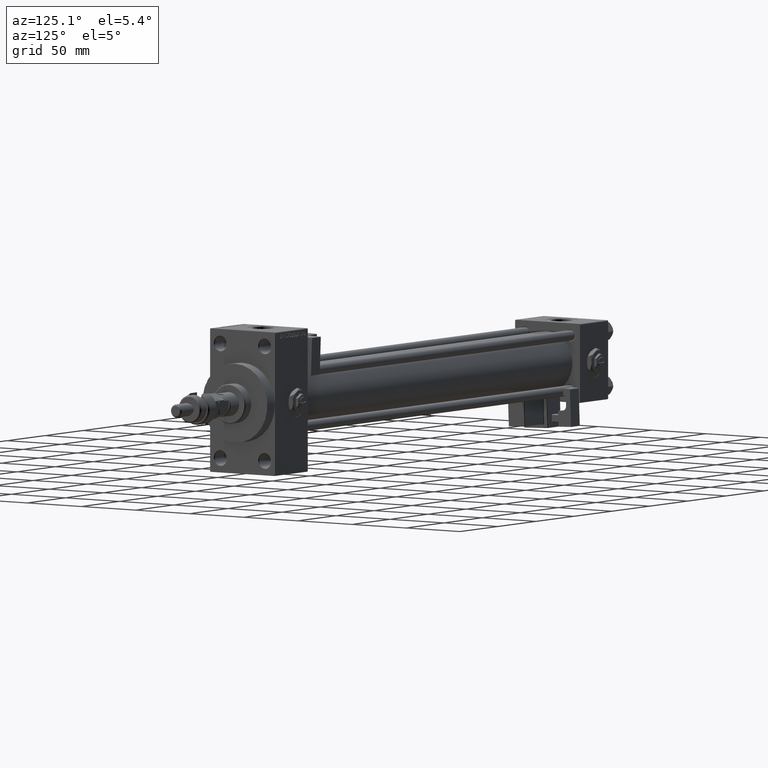
[diagram: clean part render]
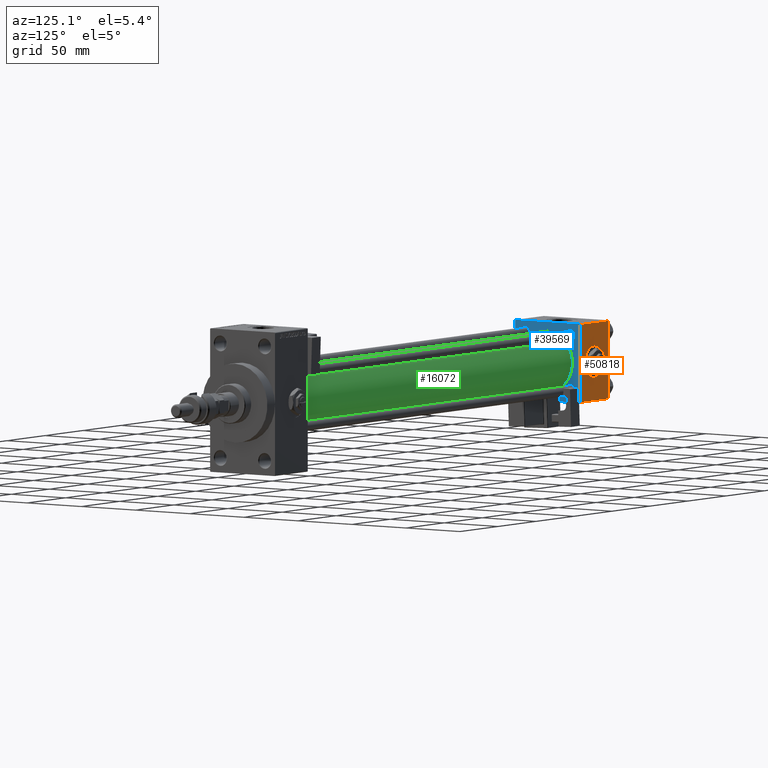
[diagram: same view with three faces highlighted in distinct colors, each labeled with its STEP entity id]
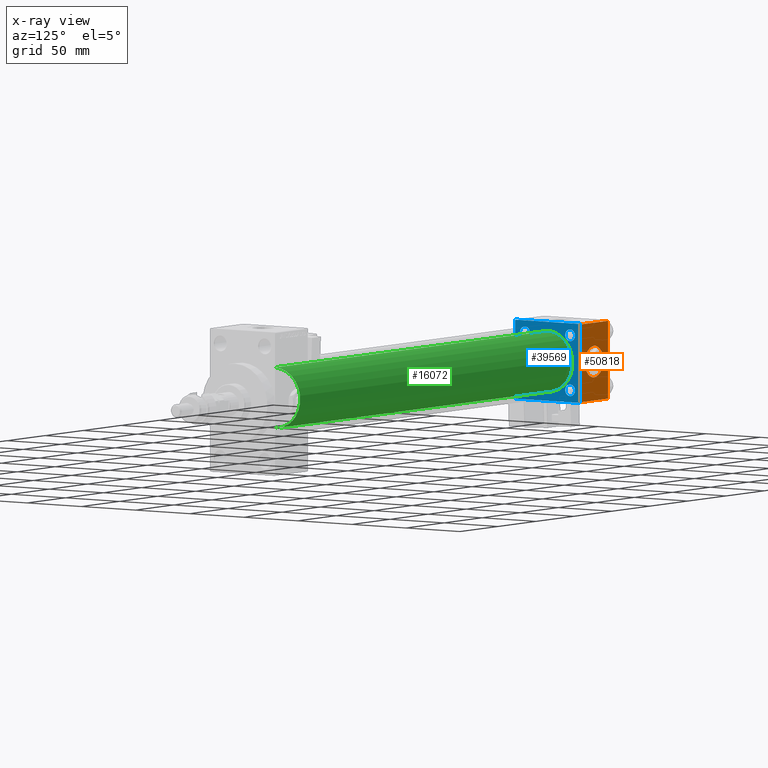
[diagram: x-ray of the same camera — body ghosted, the three highlighted faces saturated]
A machine part, auxiliary view with three faces highlighted in distinct colors.
The next image is the same camera in x-ray (body ghosted, the three faces saturated) — at least one of them is partly hidden behind the body in this view.
Their STEP definitions:

[orange] entity #50818 — the highlighted planar face has unit normal (0, 1, 0).
#104 = ORIENTED_EDGE ( 'NONE', *, *, #51241, .T. ) ;
#1538 = CARTESIAN_POINT ( 'NONE',  ( 18.50000000000000000, 29.99999999999999289, 0.000000000000000000 ) ) ;
#3291 = CARTESIAN_POINT ( 'NONE',  ( 0.000000000000000000, 29.99999999999999289, 29.50000000000000000 ) ) ;
#3626 = CARTESIAN_POINT ( 'NONE',  ( 37.00000000000000000, 29.99999999999999289, -29.50000000000000000 ) ) ;
#5875 = ORIENTED_EDGE ( 'NONE', *, *, #31510, .F. ) ;
#6135 = FACE_OUTER_BOUND ( 'NONE', #10304, .T. ) ;
#6516 = VERTEX_POINT ( 'NONE', #27968 ) ;
#6870 = VECTOR ( 'NONE', #34539, 1000.000000000000000 ) ;
#7193 = ORIENTED_EDGE ( 'NONE', *, *, #35516, .F. ) ;
#9109 = CARTESIAN_POINT ( 'NONE',  ( 37.00000000000000000, 29.99999999999999289, 29.50000000000000000 ) ) ;
#9178 = VERTEX_POINT ( 'NONE', #3626 ) ;
#9516 = DIRECTION ( 'NONE',  ( 0.000000000000000000, 0.000000000000000000, 1.000000000000000000 ) ) ;
#9603 = DIRECTION ( 'NONE',  ( 0.000000000000000000, 0.000000000000000000, 1.000000000000000000 ) ) ;
#9841 = LINE ( 'NONE', #17783, #6870 ) ;
#10055 = VECTOR ( 'NONE', #21676, 1000.000000000000000 ) ;
#10276 = CARTESIAN_POINT ( 'NONE',  ( 37.00000000000000000, 29.99999999999999289, 30.00000000000000000 ) ) ;
#10304 = EDGE_LOOP ( 'NONE', ( #43933, #104, #5875, #35887 ) ) ;
#10451 = EDGE_CURVE ( 'NONE', #22268, #6516, #25841, .T. ) ;
#11992 = EDGE_LOOP ( 'NONE', ( #18569, #7193 ) ) ;
#12207 = LINE ( 'NONE', #14763, #30319 ) ;
#12694 = AXIS2_PLACEMENT_3D ( 'NONE', #10276, #22879, #39385 ) ;
#14283 = CARTESIAN_POINT ( 'NONE',  ( 18.50000000000000000, 29.99999999999999289, -12.00000000000000178 ) ) ;
#14514 = DIRECTION ( 'NONE',  ( 1.000000000000000000, 0.000000000000000000, 0.000000000000000000 ) ) ;
#14763 = CARTESIAN_POINT ( 'NONE',  ( 37.00000000000000000, 29.99999999999999289, 30.00000000000000000 ) ) ;
#14900 = AXIS2_PLACEMENT_3D ( 'NONE', #1538, #51269, #9516 ) ;
#16297 = CARTESIAN_POINT ( 'NONE',  ( 18.50000000000000000, 29.99999999999999289, 12.00000000000000178 ) ) ;
#17783 = CARTESIAN_POINT ( 'NONE',  ( 0.000000000000000000, 29.99999999999999289, 30.00000000000000000 ) ) ;
#18569 = ORIENTED_EDGE ( 'NONE', *, *, #38070, .F. ) ;
#20396 = CARTESIAN_POINT ( 'NONE',  ( 0.000000000000000000, 29.99999999999999289, -29.50000000000000000 ) ) ;
#21039 = CIRCLE ( 'NONE', #14900, 12.00000000000000178 ) ;
#21232 = VERTEX_POINT ( 'NONE', #14283 ) ;
#21676 = DIRECTION ( 'NONE',  ( -1.000000000000000000, 0.000000000000000000, 0.000000000000000000 ) ) ;
#21701 = EDGE_CURVE ( 'NONE', #6516, #9178, #12207, .T. ) ;
#22268 = VERTEX_POINT ( 'NONE', #3291 ) ;
#22879 = DIRECTION ( 'NONE',  ( -0.000000000000000000, 1.000000000000000000, 0.000000000000000000 ) ) ;
#25841 = LINE ( 'NONE', #9109, #44063 ) ;
#26596 = CARTESIAN_POINT ( 'NONE',  ( 37.00000000000000000, 29.99999999999999289, -29.50000000000000000 ) ) ;
#27968 = CARTESIAN_POINT ( 'NONE',  ( 37.00000000000000000, 29.99999999999999289, 29.50000000000000000 ) ) ;
#28940 = DIRECTION ( 'NONE',  ( 0.000000000000000000, 0.000000000000000000, -1.000000000000000000 ) ) ;
#30319 = VECTOR ( 'NONE', #28940, 1000.000000000000000 ) ;
#30571 = PLANE ( 'NONE',  #12694 ) ;
#31510 = EDGE_CURVE ( 'NONE', #22268, #50860, #9841, .T. ) ;
#34539 = DIRECTION ( 'NONE',  ( 0.000000000000000000, 0.000000000000000000, -1.000000000000000000 ) ) ;
#34572 = LINE ( 'NONE', #26596, #10055 ) ;
#35516 = EDGE_CURVE ( 'NONE', #21232, #46643, #52618, .T. ) ;
#35887 = ORIENTED_EDGE ( 'NONE', *, *, #10451, .T. ) ;
#38070 = EDGE_CURVE ( 'NONE', #46643, #21232, #21039, .T. ) ;
#39385 = DIRECTION ( 'NONE',  ( 0.000000000000000000, -0.000000000000000000, 1.000000000000000000 ) ) ;
#39823 = DIRECTION ( 'NONE',  ( 0.000000000000000000, 1.000000000000000000, 0.000000000000000000 ) ) ;
#42863 = CARTESIAN_POINT ( 'NONE',  ( 18.50000000000000000, 29.99999999999999289, 0.000000000000000000 ) ) ;
#43933 = ORIENTED_EDGE ( 'NONE', *, *, #21701, .T. ) ;
#44063 = VECTOR ( 'NONE', #14514, 1000.000000000000000 ) ;
#46643 = VERTEX_POINT ( 'NONE', #16297 ) ;
#49136 = AXIS2_PLACEMENT_3D ( 'NONE', #42863, #39823, #9603 ) ;
#50818 = ADVANCED_FACE ( 'NONE', ( #51738, #6135 ), #30571, .T. ) ;
#50860 = VERTEX_POINT ( 'NONE', #20396 ) ;
#51241 = EDGE_CURVE ( 'NONE', #9178, #50860, #34572, .T. ) ;
#51269 = DIRECTION ( 'NONE',  ( 0.000000000000000000, 1.000000000000000000, 0.000000000000000000 ) ) ;
#51738 = FACE_BOUND ( 'NONE', #11992, .T. ) ;
#52618 = CIRCLE ( 'NONE', #49136, 12.00000000000000178 ) ;

[blue] entity #39569 — the highlighted planar face has unit normal (-1, 0, 0).
#359 = EDGE_LOOP ( 'NONE', ( #43557, #28115 ) ) ;
#583 = CIRCLE ( 'NONE', #46210, 4.500000000000003553 ) ;
#760 = CARTESIAN_POINT ( 'NONE',  ( 36.99999999999997868, -2.602085213965210642E-15, 23.00000000000000000 ) ) ;
#785 = VERTEX_POINT ( 'NONE', #45329 ) ;
#1476 = CARTESIAN_POINT ( 'NONE',  ( 37.00000000000000000, 20.84999999999999787, -20.85000000000000142 ) ) ;
#1687 = FACE_BOUND ( 'NONE', #13300, .T. ) ;
#1828 = CARTESIAN_POINT ( 'NONE',  ( 37.00000000000000000, 20.84999999999999787, 20.85000000000000142 ) ) ;
#1868 = AXIS2_PLACEMENT_3D ( 'NONE', #17130, #33338, #42163 ) ;
#1968 = DIRECTION ( 'NONE',  ( -0.000000000000000000, 0.000000000000000000, 1.000000000000000000 ) ) ;
#3209 = ORIENTED_EDGE ( 'NONE', *, *, #50707, .T. ) ;
#3626 = CARTESIAN_POINT ( 'NONE',  ( 37.00000000000000000, 29.99999999999999289, -29.50000000000000000 ) ) ;
#3679 = CARTESIAN_POINT ( 'NONE',  ( 36.99999999999997868, -2.602085213965210642E-15, 0.000000000000000000 ) ) ;
#4195 = VERTEX_POINT ( 'NONE', #760 ) ;
#4519 = CARTESIAN_POINT ( 'NONE',  ( 37.00000000000000000, 29.49999999999999289, 30.00000000000000000 ) ) ;
#4729 = LINE ( 'NONE', #29997, #20088 ) ;
#4992 = VERTEX_POINT ( 'NONE', #36251 ) ;
#5046 = DIRECTION ( 'NONE',  ( 0.000000000000000000, -0.7071067811865474617, 0.7071067811865474617 ) ) ;
#5158 = EDGE_LOOP ( 'NONE', ( #42391, #13792 ) ) ;
#5332 = ORIENTED_EDGE ( 'NONE', *, *, #28975, .T. ) ;
#5422 = ORIENTED_EDGE ( 'NONE', *, *, #17268, .T. ) ;
#5485 = VERTEX_POINT ( 'NONE', #6170 ) ;
#6043 = CIRCLE ( 'NONE', #20053, 23.00000000000000000 ) ;
#6170 = CARTESIAN_POINT ( 'NONE',  ( 37.00000000000000000, -20.84999999999999076, -25.35000000000000853 ) ) ;
#6510 = CARTESIAN_POINT ( 'NONE',  ( 37.00000000000000000, 20.84999999999999787, 25.35000000000000497 ) ) ;
#6516 = VERTEX_POINT ( 'NONE', #27968 ) ;
#7122 = DIRECTION ( 'NONE',  ( 0.000000000000000000, -1.000000000000000000, -1.156482317317871725E-16 ) ) ;
#7126 = VERTEX_POINT ( 'NONE', #35402 ) ;
#7792 = CIRCLE ( 'NONE', #21796, 23.00000000000000000 ) ;
#7813 = DIRECTION ( 'NONE',  ( -1.000000000000000000, 0.000000000000000000, -0.000000000000000000 ) ) ;
#8081 = DIRECTION ( 'NONE',  ( 1.000000000000000000, -0.000000000000000000, 0.000000000000000000 ) ) ;
#8410 = CARTESIAN_POINT ( 'NONE',  ( 37.00000000000000000, 29.49999999999999289, 30.00000000000000000 ) ) ;
#8701 = AXIS2_PLACEMENT_3D ( 'NONE', #46298, #20186, #41090 ) ;
#8922 = LINE ( 'NONE', #4519, #19657 ) ;
#9136 = ORIENTED_EDGE ( 'NONE', *, *, #29415, .T. ) ;
#9178 = VERTEX_POINT ( 'NONE', #3626 ) ;
#9654 = DIRECTION ( 'NONE',  ( 0.000000000000000000, 0.000000000000000000, 1.000000000000000000 ) ) ;
#9944 = DIRECTION ( 'NONE',  ( -1.000000000000000000, 0.000000000000000000, -0.000000000000000000 ) ) ;
#10212 = FACE_BOUND ( 'NONE', #27094, .T. ) ;
#11044 = FACE_BOUND ( 'NONE', #24663, .T. ) ;
#12207 = LINE ( 'NONE', #14763, #30319 ) ;
#13300 = EDGE_LOOP ( 'NONE', ( #52255, #35938 ) ) ;
#13490 = VECTOR ( 'NONE', #7122, 1000.000000000000000 ) ;
#13783 = DIRECTION ( 'NONE',  ( 0.000000000000000000, -1.000000000000000000, -1.156482317317871725E-16 ) ) ;
#13792 = ORIENTED_EDGE ( 'NONE', *, *, #44155, .T. ) ;
#13814 = LINE ( 'NONE', #38539, #32876 ) ;
#13843 = DIRECTION ( 'NONE',  ( 0.000000000000000000, 0.000000000000000000, 1.000000000000000000 ) ) ;
#14034 = EDGE_CURVE ( 'NONE', #29607, #16495, #27985, .T. ) ;
#14145 = CARTESIAN_POINT ( 'NONE',  ( 37.00000000000000000, -20.84999999999999076, -20.85000000000000497 ) ) ;
#14574 = CARTESIAN_POINT ( 'NONE',  ( 37.00000000000000000, 20.84999999999999787, -16.34999999999999787 ) ) ;
#14625 = VERTEX_POINT ( 'NONE', #21720 ) ;
#14633 = EDGE_CURVE ( 'NONE', #51501, #51700, #31861, .T. ) ;
#14676 = CARTESIAN_POINT ( 'NONE',  ( 37.00000000000000000, -29.50000000000000000, -30.00000000000000711 ) ) ;
#14763 = CARTESIAN_POINT ( 'NONE',  ( 37.00000000000000000, 29.99999999999999289, 30.00000000000000000 ) ) ;
#15644 = DIRECTION ( 'NONE',  ( -1.000000000000000000, 0.000000000000000000, -0.000000000000000000 ) ) ;
#15684 = VERTEX_POINT ( 'NONE', #20323 ) ;
#16495 = VERTEX_POINT ( 'NONE', #14676 ) ;
#16902 = CARTESIAN_POINT ( 'NONE',  ( 37.00000000000000000, -30.00000000000000000, 29.49999999999999289 ) ) ;
#17130 = CARTESIAN_POINT ( 'NONE',  ( 37.00000000000000000, 20.84999999999999787, -20.85000000000000142 ) ) ;
#17268 = EDGE_CURVE ( 'NONE', #51700, #7126, #13814, .T. ) ;
#17740 = EDGE_CURVE ( 'NONE', #14625, #36706, #18001, .T. ) ;
#18001 = CIRCLE ( 'NONE', #24139, 4.500000000000003553 ) ;
#19213 = CARTESIAN_POINT ( 'NONE',  ( 37.00000000000000000, 29.49999999999997868, -30.00000000000000000 ) ) ;
#19625 = DIRECTION ( 'NONE',  ( 0.000000000000000000, 0.000000000000000000, 1.000000000000000000 ) ) ;
#19657 = VECTOR ( 'NONE', #5046, 1000.000000000000114 ) ;
#20053 = AXIS2_PLACEMENT_3D ( 'NONE', #3679, #8081, #53939 ) ;
#20088 = VECTOR ( 'NONE', #13783, 1000.000000000000000 ) ;
#20186 = DIRECTION ( 'NONE',  ( -1.000000000000000000, 0.000000000000000000, -0.000000000000000000 ) ) ;
#20292 = VERTEX_POINT ( 'NONE', #8410 ) ;
#20323 = CARTESIAN_POINT ( 'NONE',  ( 36.99999999999997868, 2.146024240737012665E-16, -23.00000000000000000 ) ) ;
#20545 = DIRECTION ( 'NONE',  ( 0.000000000000000000, 0.000000000000000000, 1.000000000000000000 ) ) ;
#21701 = EDGE_CURVE ( 'NONE', #6516, #9178, #12207, .T. ) ;
#21720 = CARTESIAN_POINT ( 'NONE',  ( 37.00000000000000000, 20.84999999999999787, 16.34999999999999787 ) ) ;
#21796 = AXIS2_PLACEMENT_3D ( 'NONE', #21991, #30505, #9654 ) ;
#21991 = CARTESIAN_POINT ( 'NONE',  ( 36.99999999999997868, -2.602085213965210642E-15, 0.000000000000000000 ) ) ;
#23649 = CARTESIAN_POINT ( 'NONE',  ( 37.00000000000000000, 0.000000000000000000, 0.000000000000000000 ) ) ;
#24139 = AXIS2_PLACEMENT_3D ( 'NONE', #54085, #15644, #53287 ) ;
#24663 = EDGE_LOOP ( 'NONE', ( #9136, #30214 ) ) ;
#24929 = VECTOR ( 'NONE', #48366, 1000.000000000000114 ) ;
#25571 = DIRECTION ( 'NONE',  ( 0.000000000000000000, 0.000000000000000000, 1.000000000000000000 ) ) ;
#25878 = EDGE_LOOP ( 'NONE', ( #38355, #33429, #33660, #36793, #38756, #48478, #5422, #3209 ) ) ;
#26221 = EDGE_CURVE ( 'NONE', #36706, #14625, #42829, .T. ) ;
#27094 = EDGE_LOOP ( 'NONE', ( #37406, #5332 ) ) ;
#27175 = CARTESIAN_POINT ( 'NONE',  ( 37.00000000000000000, -20.84999999999999076, -16.35000000000000142 ) ) ;
#27220 = PLANE ( 'NONE',  #34193 ) ;
#27467 = CIRCLE ( 'NONE', #37135, 4.500000000000003553 ) ;
#27696 = LINE ( 'NONE', #39808, #48655 ) ;
#27804 = EDGE_CURVE ( 'NONE', #15684, #4195, #6043, .T. ) ;
#27872 = DIRECTION ( 'NONE',  ( -0.000000000000000000, 0.7071067811865574537, 0.7071067811865376918 ) ) ;
#27968 = CARTESIAN_POINT ( 'NONE',  ( 37.00000000000000000, 29.99999999999999289, 29.50000000000000000 ) ) ;
#27985 = LINE ( 'NONE', #44772, #13490 ) ;
#28115 = ORIENTED_EDGE ( 'NONE', *, *, #27804, .F. ) ;
#28614 = DIRECTION ( 'NONE',  ( -1.000000000000000000, 0.000000000000000000, -0.000000000000000000 ) ) ;
#28656 = VECTOR ( 'NONE', #27872, 999.9999999999998863 ) ;
#28940 = DIRECTION ( 'NONE',  ( 0.000000000000000000, 0.000000000000000000, -1.000000000000000000 ) ) ;
#28975 = EDGE_CURVE ( 'NONE', #40642, #5485, #34800, .T. ) ;
#29044 = EDGE_CURVE ( 'NONE', #29607, #9178, #39980, .T. ) ;
#29415 = EDGE_CURVE ( 'NONE', #4992, #37610, #583, .T. ) ;
#29607 = VERTEX_POINT ( 'NONE', #19213 ) ;
#29610 = VERTEX_POINT ( 'NONE', #14574 ) ;
#29997 = CARTESIAN_POINT ( 'NONE',  ( 37.00000000000000000, 29.99999999999999289, 30.00000000000000000 ) ) ;
#30122 = CARTESIAN_POINT ( 'NONE',  ( 37.00000000000000000, -29.49999999999998579, 29.99999999999999289 ) ) ;
#30214 = ORIENTED_EDGE ( 'NONE', *, *, #45991, .T. ) ;
#30319 = VECTOR ( 'NONE', #28940, 1000.000000000000000 ) ;
#30505 = DIRECTION ( 'NONE',  ( 1.000000000000000000, -0.000000000000000000, 0.000000000000000000 ) ) ;
#31861 = LINE ( 'NONE', #35720, #24929 ) ;
#32016 = CARTESIAN_POINT ( 'NONE',  ( 37.00000000000000000, -20.84999999999999076, 25.35000000000000853 ) ) ;
#32028 = DIRECTION ( 'NONE',  ( -1.000000000000000000, 0.000000000000000000, -0.000000000000000000 ) ) ;
#32876 = VECTOR ( 'NONE', #50910, 1000.000000000000000 ) ;
#33338 = DIRECTION ( 'NONE',  ( -1.000000000000000000, 0.000000000000000000, -0.000000000000000000 ) ) ;
#33429 = ORIENTED_EDGE ( 'NONE', *, *, #29044, .T. ) ;
#33440 = CARTESIAN_POINT ( 'NONE',  ( 37.00000000000000000, -20.84999999999999076, 20.85000000000000497 ) ) ;
#33660 = ORIENTED_EDGE ( 'NONE', *, *, #21701, .F. ) ;
#34193 = AXIS2_PLACEMENT_3D ( 'NONE', #23649, #9944, #1968 ) ;
#34800 = CIRCLE ( 'NONE', #41864, 4.500000000000003553 ) ;
#35294 = AXIS2_PLACEMENT_3D ( 'NONE', #1476, #47625, #13843 ) ;
#35402 = CARTESIAN_POINT ( 'NONE',  ( 37.00000000000000000, -30.00000000000000000, -29.50000000000001776 ) ) ;
#35720 = CARTESIAN_POINT ( 'NONE',  ( 37.00000000000000000, -30.00000000000000000, 29.49999999999999289 ) ) ;
#35938 = ORIENTED_EDGE ( 'NONE', *, *, #26221, .T. ) ;
#36251 = CARTESIAN_POINT ( 'NONE',  ( 37.00000000000000000, -20.84999999999999076, 16.35000000000000142 ) ) ;
#36706 = VERTEX_POINT ( 'NONE', #6510 ) ;
#36793 = ORIENTED_EDGE ( 'NONE', *, *, #49921, .T. ) ;
#36931 = CARTESIAN_POINT ( 'NONE',  ( 37.00000000000000000, 29.99999999999999289, -29.50000000000000000 ) ) ;
#37135 = AXIS2_PLACEMENT_3D ( 'NONE', #33440, #50227, #20545 ) ;
#37406 = ORIENTED_EDGE ( 'NONE', *, *, #53483, .T. ) ;
#37610 = VERTEX_POINT ( 'NONE', #32016 ) ;
#38355 = ORIENTED_EDGE ( 'NONE', *, *, #14034, .F. ) ;
#38539 = CARTESIAN_POINT ( 'NONE',  ( 37.00000000000000000, -30.00000000000000000, 29.99999999999999289 ) ) ;
#38756 = ORIENTED_EDGE ( 'NONE', *, *, #53944, .T. ) ;
#39327 = FACE_BOUND ( 'NONE', #5158, .T. ) ;
#39569 = ADVANCED_FACE ( 'NONE', ( #10212, #39327, #11044, #1687, #39609, #44565 ), #27220, .F. ) ;
#39609 = FACE_BOUND ( 'NONE', #359, .T. ) ;
#39808 = CARTESIAN_POINT ( 'NONE',  ( 37.00000000000000000, -29.50000000000001066, -30.00000000000000711 ) ) ;
#39980 = LINE ( 'NONE', #36931, #28656 ) ;
#40522 = CIRCLE ( 'NONE', #1868, 4.500000000000003553 ) ;
#40642 = VERTEX_POINT ( 'NONE', #27175 ) ;
#41090 = DIRECTION ( 'NONE',  ( 0.000000000000000000, 0.000000000000000000, 1.000000000000000000 ) ) ;
#41818 = CARTESIAN_POINT ( 'NONE',  ( 37.00000000000000000, -20.84999999999999076, 20.85000000000000497 ) ) ;
#41864 = AXIS2_PLACEMENT_3D ( 'NONE', #14145, #7813, #19625 ) ;
#42163 = DIRECTION ( 'NONE',  ( 0.000000000000000000, 0.000000000000000000, 1.000000000000000000 ) ) ;
#42391 = ORIENTED_EDGE ( 'NONE', *, *, #42426, .T. ) ;
#42426 = EDGE_CURVE ( 'NONE', #785, #29610, #40522, .T. ) ;
#42829 = CIRCLE ( 'NONE', #52454, 4.500000000000003553 ) ;
#43557 = ORIENTED_EDGE ( 'NONE', *, *, #53075, .F. ) ;
#44155 = EDGE_CURVE ( 'NONE', #29610, #785, #52858, .T. ) ;
#44565 = FACE_OUTER_BOUND ( 'NONE', #25878, .T. ) ;
#44772 = CARTESIAN_POINT ( 'NONE',  ( 37.00000000000000000, 29.99999999999999289, -30.00000000000000000 ) ) ;
#45329 = CARTESIAN_POINT ( 'NONE',  ( 37.00000000000000000, 20.84999999999999787, -25.35000000000000497 ) ) ;
#45991 = EDGE_CURVE ( 'NONE', #37610, #4992, #27467, .T. ) ;
#46210 = AXIS2_PLACEMENT_3D ( 'NONE', #41818, #28614, #25571 ) ;
#46298 = CARTESIAN_POINT ( 'NONE',  ( 37.00000000000000000, -20.84999999999999076, -20.85000000000000497 ) ) ;
#47625 = DIRECTION ( 'NONE',  ( -1.000000000000000000, 0.000000000000000000, -0.000000000000000000 ) ) ;
#48366 = DIRECTION ( 'NONE',  ( -0.000000000000000000, -0.7071067811865474617, -0.7071067811865474617 ) ) ;
#48478 = ORIENTED_EDGE ( 'NONE', *, *, #14633, .T. ) ;
#48655 = VECTOR ( 'NONE', #52156, 1000.000000000000114 ) ;
#48813 = DIRECTION ( 'NONE',  ( 0.000000000000000000, 0.000000000000000000, 1.000000000000000000 ) ) ;
#49910 = CIRCLE ( 'NONE', #8701, 4.500000000000003553 ) ;
#49921 = EDGE_CURVE ( 'NONE', #6516, #20292, #8922, .T. ) ;
#50227 = DIRECTION ( 'NONE',  ( -1.000000000000000000, 0.000000000000000000, -0.000000000000000000 ) ) ;
#50707 = EDGE_CURVE ( 'NONE', #7126, #16495, #27696, .T. ) ;
#50910 = DIRECTION ( 'NONE',  ( 0.000000000000000000, 0.000000000000000000, -1.000000000000000000 ) ) ;
#51501 = VERTEX_POINT ( 'NONE', #30122 ) ;
#51700 = VERTEX_POINT ( 'NONE', #16902 ) ;
#52156 = DIRECTION ( 'NONE',  ( 0.000000000000000000, 0.7071067811865474617, -0.7071067811865474617 ) ) ;
#52255 = ORIENTED_EDGE ( 'NONE', *, *, #17740, .T. ) ;
#52454 = AXIS2_PLACEMENT_3D ( 'NONE', #1828, #32028, #48813 ) ;
#52858 = CIRCLE ( 'NONE', #35294, 4.500000000000003553 ) ;
#53075 = EDGE_CURVE ( 'NONE', #4195, #15684, #7792, .T. ) ;
#53287 = DIRECTION ( 'NONE',  ( 0.000000000000000000, 0.000000000000000000, 1.000000000000000000 ) ) ;
#53483 = EDGE_CURVE ( 'NONE', #5485, #40642, #49910, .T. ) ;
#53939 = DIRECTION ( 'NONE',  ( 0.000000000000000000, 0.000000000000000000, 1.000000000000000000 ) ) ;
#53944 = EDGE_CURVE ( 'NONE', #20292, #51501, #4729, .T. ) ;
#54085 = CARTESIAN_POINT ( 'NONE',  ( 37.00000000000000000, 20.84999999999999787, 20.85000000000000142 ) ) ;

[green] entity #16072 — the highlighted cylindrical surface (edge-blend (fillet) strip) has radius 23 mm, axis along (-1, -0, -0).
#760 = CARTESIAN_POINT ( 'NONE',  ( 36.99999999999997868, -2.602085213965210642E-15, 23.00000000000000000 ) ) ;
#1305 = CARTESIAN_POINT ( 'NONE',  ( 394.9999999999999432, 2.146024240737012665E-16, -23.00000000000000000 ) ) ;
#1565 = CARTESIAN_POINT ( 'NONE',  ( 394.9999999999999432, -2.602085213965210642E-15, 23.00000000000000000 ) ) ;
#3679 = CARTESIAN_POINT ( 'NONE',  ( 36.99999999999997868, -2.602085213965210642E-15, 0.000000000000000000 ) ) ;
#4195 = VERTEX_POINT ( 'NONE', #760 ) ;
#5680 = LINE ( 'NONE', #1565, #8280 ) ;
#6043 = CIRCLE ( 'NONE', #20053, 23.00000000000000000 ) ;
#8081 = DIRECTION ( 'NONE',  ( 1.000000000000000000, -0.000000000000000000, 0.000000000000000000 ) ) ;
#8280 = VECTOR ( 'NONE', #10356, 1000.000000000000000 ) ;
#8934 = ORIENTED_EDGE ( 'NONE', *, *, #21584, .T. ) ;
#10356 = DIRECTION ( 'NONE',  ( -1.000000000000000000, -0.000000000000000000, -0.000000000000000000 ) ) ;
#13377 = DIRECTION ( 'NONE',  ( 0.000000000000000000, 0.000000000000000000, 1.000000000000000000 ) ) ;
#15684 = VERTEX_POINT ( 'NONE', #20323 ) ;
#16072 = ADVANCED_FACE ( 'NONE', ( #17741 ), #21601, .T. ) ;
#17741 = FACE_OUTER_BOUND ( 'NONE', #26401, .T. ) ;
#17902 = CARTESIAN_POINT ( 'NONE',  ( 394.9999999999999432, -2.602085213965210642E-15, 0.000000000000000000 ) ) ;
#18006 = DIRECTION ( 'NONE',  ( -1.000000000000000000, -0.000000000000000000, -0.000000000000000000 ) ) ;
#20053 = AXIS2_PLACEMENT_3D ( 'NONE', #3679, #8081, #53939 ) ;
#20323 = CARTESIAN_POINT ( 'NONE',  ( 36.99999999999997868, 2.146024240737012665E-16, -23.00000000000000000 ) ) ;
#20866 = EDGE_CURVE ( 'NONE', #26256, #34169, #47990, .T. ) ;
#21584 = EDGE_CURVE ( 'NONE', #26256, #15684, #39491, .T. ) ;
#21601 = CYLINDRICAL_SURFACE ( 'NONE', #35474, 23.00000000000000000 ) ;
#22421 = DIRECTION ( 'NONE',  ( -1.000000000000000000, -0.000000000000000000, -0.000000000000000000 ) ) ;
#25551 = ORIENTED_EDGE ( 'NONE', *, *, #27804, .T. ) ;
#26256 = VERTEX_POINT ( 'NONE', #36708 ) ;
#26401 = EDGE_LOOP ( 'NONE', ( #53619, #8934, #25551, #45665 ) ) ;
#27804 = EDGE_CURVE ( 'NONE', #15684, #4195, #6043, .T. ) ;
#30801 = DIRECTION ( 'NONE',  ( 0.000000000000000000, 0.000000000000000000, -1.000000000000000000 ) ) ;
#34169 = VERTEX_POINT ( 'NONE', #41838 ) ;
#34661 = DIRECTION ( 'NONE',  ( 1.000000000000000000, 0.000000000000000000, 0.000000000000000000 ) ) ;
#35474 = AXIS2_PLACEMENT_3D ( 'NONE', #50481, #18006, #13377 ) ;
#36708 = CARTESIAN_POINT ( 'NONE',  ( 394.9999999999999432, 2.146024240737012665E-16, -23.00000000000000000 ) ) ;
#39491 = LINE ( 'NONE', #1305, #42631 ) ;
#41838 = CARTESIAN_POINT ( 'NONE',  ( 394.9999999999999432, -2.602085213965210642E-15, 23.00000000000000000 ) ) ;
#41857 = AXIS2_PLACEMENT_3D ( 'NONE', #17902, #34661, #30801 ) ;
#42631 = VECTOR ( 'NONE', #22421, 1000.000000000000000 ) ;
#45665 = ORIENTED_EDGE ( 'NONE', *, *, #47614, .F. ) ;
#47614 = EDGE_CURVE ( 'NONE', #34169, #4195, #5680, .T. ) ;
#47990 = CIRCLE ( 'NONE', #41857, 23.00000000000000000 ) ;
#50481 = CARTESIAN_POINT ( 'NONE',  ( 394.9999999999999432, -2.602085213965210642E-15, 0.000000000000000000 ) ) ;
#53619 = ORIENTED_EDGE ( 'NONE', *, *, #20866, .F. ) ;
#53939 = DIRECTION ( 'NONE',  ( 0.000000000000000000, 0.000000000000000000, 1.000000000000000000 ) ) ;